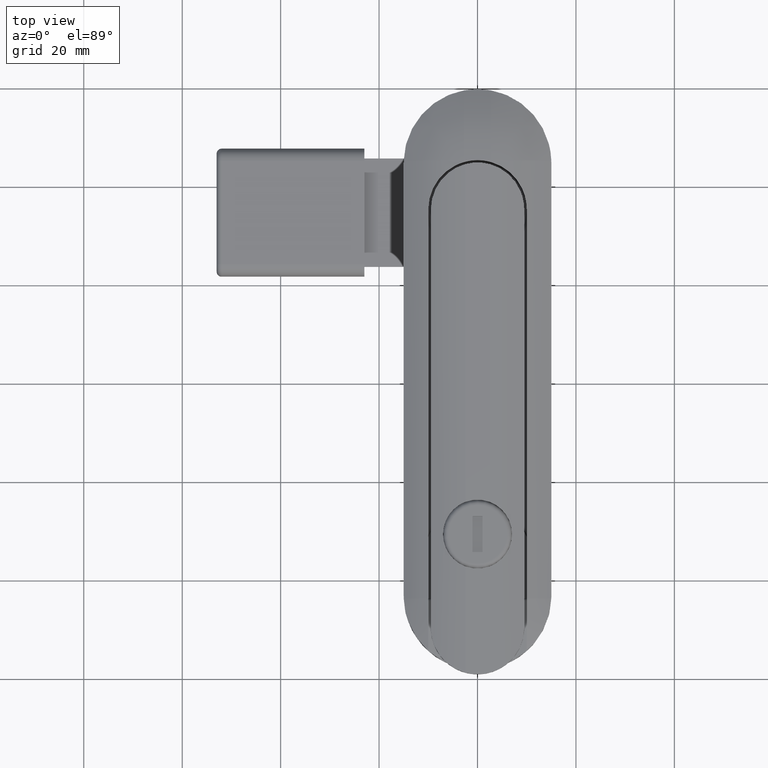
[diagram: clean part render]
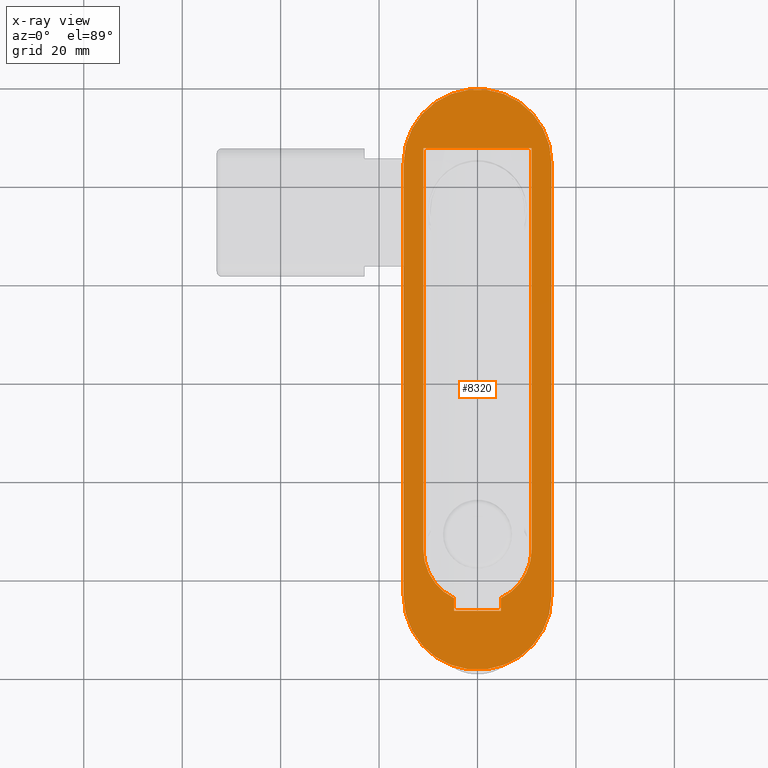
[diagram: x-ray — body ghosted, one internal face saturated and labeled with its STEP entity id]
A machine part, top view, then the same camera in x-ray: the body is ghosted and one INTERNAL B-rep face — a face not visible from any outside direction — is saturated and labeled: STEP entity #8320.
In plain terms, the highlighted planar face has unit normal (0, 0, 1).
Its self-contained STEP definition (entity closure, byte-faithful):
#994=LINE('',#16244,#1586);
#997=LINE('',#16250,#1589);
#1001=LINE('',#16262,#1593);
#1004=LINE('',#16268,#1596);
#1007=LINE('',#16274,#1599);
#1011=LINE('',#16284,#1603);
#1015=LINE('',#16298,#1607);
#1019=LINE('',#16308,#1611);
#1586=VECTOR('',#11504,9.5);
#1589=VECTOR('',#11509,2.57843258350779);
#1593=VECTOR('',#11521,81.5);
#1596=VECTOR('',#11526,22.);
#1599=VECTOR('',#11531,81.5);
#1603=VECTOR('',#11543,2.57843258350778);
#1607=VECTOR('',#11555,88.);
#1611=VECTOR('',#11567,88.);
#1830=PLANE('',#9210);
#1903=FACE_BOUND('',#2968,.T.);
#2399=FACE_OUTER_BOUND('',#2967,.T.);
#2967=EDGE_LOOP('',(#7649,#7650,#7651,#7652));
#2968=EDGE_LOOP('',(#7653,#7654,#7655,#7656,#7657,#7658,#7659,#7660));
#3350=CIRCLE('',#9193,11.);
#3352=CIRCLE('',#9199,11.);
#3354=CIRCLE('',#9203,15.);
#3356=CIRCLE('',#9207,15.);
#4097=VERTEX_POINT('',#16241);
#4098=VERTEX_POINT('',#16243);
#4100=VERTEX_POINT('',#16249);
#4102=VERTEX_POINT('',#16255);
#4104=VERTEX_POINT('',#16261);
#4106=VERTEX_POINT('',#16267);
#4108=VERTEX_POINT('',#16273);
#4110=VERTEX_POINT('',#16279);
#4113=VERTEX_POINT('',#16289);
#4114=VERTEX_POINT('',#16291);
#4116=VERTEX_POINT('',#16297);
#4118=VERTEX_POINT('',#16303);
#5265=EDGE_CURVE('',#4098,#4097,#994,.T.);
#5268=EDGE_CURVE('',#4100,#4098,#997,.T.);
#5271=EDGE_CURVE('',#4102,#4100,#3350,.T.);
#5274=EDGE_CURVE('',#4104,#4102,#1001,.T.);
#5277=EDGE_CURVE('',#4106,#4104,#1004,.T.);
#5280=EDGE_CURVE('',#4108,#4106,#1007,.T.);
#5283=EDGE_CURVE('',#4110,#4108,#3352,.T.);
#5286=EDGE_CURVE('',#4097,#4110,#1011,.T.);
#5289=EDGE_CURVE('',#4114,#4113,#3354,.T.);
#5292=EDGE_CURVE('',#4116,#4114,#1015,.T.);
#5295=EDGE_CURVE('',#4118,#4116,#3356,.T.);
#5298=EDGE_CURVE('',#4113,#4118,#1019,.T.);
#7649=ORIENTED_EDGE('',*,*,#5298,.T.);
#7650=ORIENTED_EDGE('',*,*,#5295,.T.);
#7651=ORIENTED_EDGE('',*,*,#5292,.T.);
#7652=ORIENTED_EDGE('',*,*,#5289,.T.);
#7653=ORIENTED_EDGE('',*,*,#5277,.T.);
#7654=ORIENTED_EDGE('',*,*,#5274,.T.);
#7655=ORIENTED_EDGE('',*,*,#5271,.T.);
#7656=ORIENTED_EDGE('',*,*,#5268,.T.);
#7657=ORIENTED_EDGE('',*,*,#5265,.T.);
#7658=ORIENTED_EDGE('',*,*,#5286,.T.);
#7659=ORIENTED_EDGE('',*,*,#5283,.T.);
#7660=ORIENTED_EDGE('',*,*,#5280,.T.);
#8320=ADVANCED_FACE('',(#2399,#1903),#1830,.T.);
#9193=AXIS2_PLACEMENT_3D('',#16256,#11515,#11516);
#9199=AXIS2_PLACEMENT_3D('',#16280,#11537,#11538);
#9203=AXIS2_PLACEMENT_3D('',#16292,#11549,#11550);
#9207=AXIS2_PLACEMENT_3D('',#16304,#11561,#11562);
#9210=AXIS2_PLACEMENT_3D('',#16310,#11570,#11571);
#11504=DIRECTION('',(1.,0.,0.));
#11509=DIRECTION('',(0.,1.,0.));
#11515=DIRECTION('center_axis',(0.,0.,-1.));
#11516=DIRECTION('ref_axis',(-0.431818181818183,0.901960674226564,0.));
#11521=DIRECTION('',(-2.17957894404939E-16,1.,0.));
#11526=DIRECTION('',(-1.,0.,0.));
#11531=DIRECTION('',(3.54181578408025E-16,-1.,0.));
#11537=DIRECTION('center_axis',(0.,0.,-1.));
#11538=DIRECTION('ref_axis',(-0.431818181818183,0.901960674226564,0.));
#11543=DIRECTION('',(4.30580590598484E-16,-1.,0.));
#11549=DIRECTION('center_axis',(0.,0.,1.));
#11550=DIRECTION('ref_axis',(-1.,0.,0.));
#11555=DIRECTION('',(-2.52323414687536E-16,1.,0.));
#11561=DIRECTION('center_axis',(0.,0.,1.));
#11562=DIRECTION('ref_axis',(1.,0.,0.));
#11567=DIRECTION('',(1.00929365875014E-16,-1.,0.));
#11570=DIRECTION('center_axis',(0.,0.,1.));
#11571=DIRECTION('ref_axis',(1.,0.,0.));
#16241=CARTESIAN_POINT('',(4.74999999999998,47.,1.));
#16243=CARTESIAN_POINT('',(-4.75000000000002,47.,1.));
#16244=CARTESIAN_POINT('',(-2.37500000000001,47.,1.));
#16249=CARTESIAN_POINT('',(-4.75000000000002,44.4215674164922,1.));
#16250=CARTESIAN_POINT('',(-4.75000000000002,22.2107837082461,1.));
#16255=CARTESIAN_POINT('',(-11.,34.5,1.));
#16256=CARTESIAN_POINT('Origin',(-7.3817561659915E-15,34.5,1.));
#16261=CARTESIAN_POINT('',(-11.,-47.,1.));
#16262=CARTESIAN_POINT('',(-11.,-23.5,1.));
#16267=CARTESIAN_POINT('',(11.,-47.,1.));
#16268=CARTESIAN_POINT('',(5.50000000000001,-47.,1.));
#16273=CARTESIAN_POINT('',(11.,34.5,1.));
#16274=CARTESIAN_POINT('',(11.,17.25,1.));
#16279=CARTESIAN_POINT('',(4.74999999999998,44.4215674164922,1.));
#16280=CARTESIAN_POINT('Origin',(-7.3817561659915E-15,34.5,1.));
#16284=CARTESIAN_POINT('',(4.74999999999999,23.5,1.));
#16289=CARTESIAN_POINT('',(-15.,44.,1.));
#16291=CARTESIAN_POINT('',(15.,44.,1.));
#16292=CARTESIAN_POINT('Origin',(-1.61653377487451E-14,44.,1.));
#16297=CARTESIAN_POINT('',(15.,-44.,1.));
#16298=CARTESIAN_POINT('',(15.,44.,1.));
#16303=CARTESIAN_POINT('',(-15.,-44.,1.));
#16304=CARTESIAN_POINT('Origin',(0.,-44.,1.));
#16308=CARTESIAN_POINT('',(-15.,-44.,1.));
#16310=CARTESIAN_POINT('Origin',(-7.52893796757812E-15,-2.16026612332925E-15,
1.));